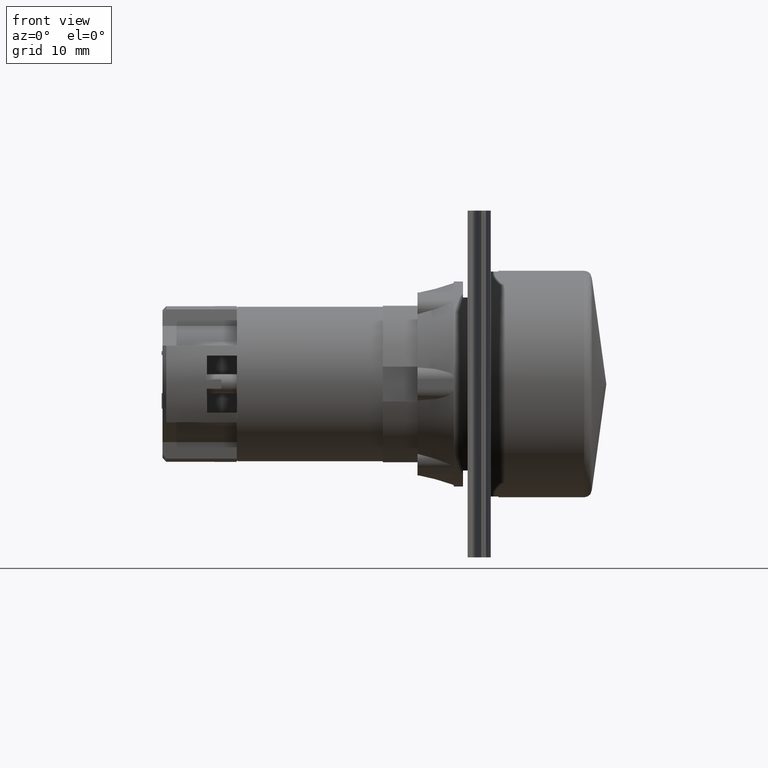
[diagram: clean part render]
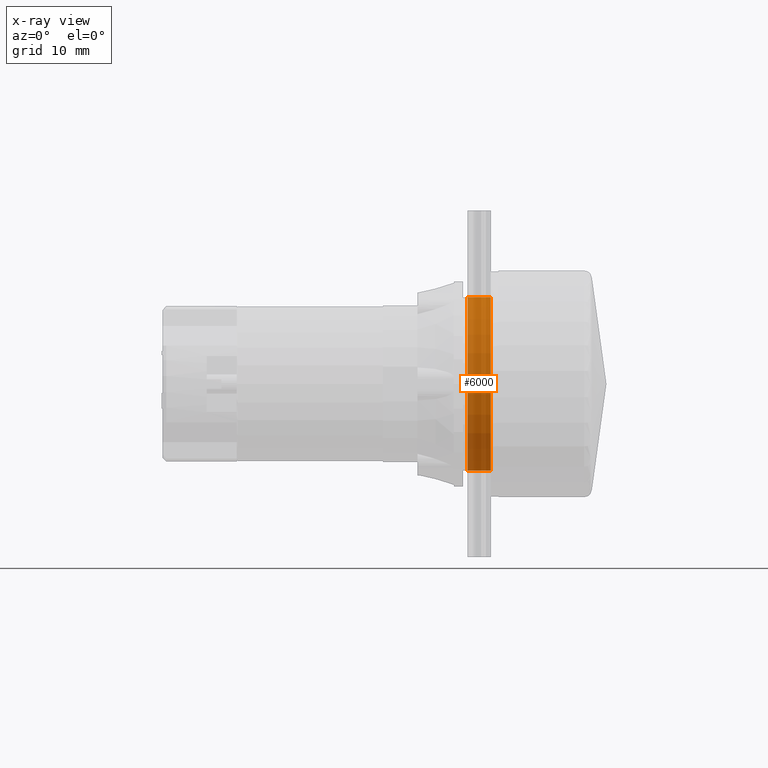
[diagram: x-ray — body ghosted, one internal face saturated and labeled with its STEP entity id]
A machine part, front view, then the same camera in x-ray: the body is ghosted and one INTERNAL B-rep face — a face not visible from any outside direction — is saturated and labeled: STEP entity #6000.
In plain terms, the highlighted cylindrical surface (bore or boss wall) has radius 11.25 mm, axis along (-1, 0, 0).
Its self-contained STEP definition (entity closure, byte-faithful):
#5973=CARTESIAN_POINT('',(-12.704183619849175,-32.725398273954283,22.500000000000000));
#5974=DIRECTION('',(-1.0,0.0,0.0));
#5975=DIRECTION('',(0.0,0.0,1.0));
#5976=AXIS2_PLACEMENT_3D('',#5973,#5974,#5975);
#5977=CYLINDRICAL_SURFACE('',#5976,11.250000000000000);
#5978=CARTESIAN_POINT('',(-15.704183619849179,-32.725398273954283,11.250000000000000));
#5979=VERTEX_POINT('',#5978);
#5980=CARTESIAN_POINT('',(-15.704183619849179,-32.725398273954283,22.500000000000000));
#5981=DIRECTION('',(1.0,0.0,0.0));
#5982=DIRECTION('',(0.0,0.0,1.0));
#5983=AXIS2_PLACEMENT_3D('',#5980,#5981,#5982);
#5984=CIRCLE('',#5983,11.250000000000000);
#5985=EDGE_CURVE('',#5979,#5979,#5984,.T.);
#5986=ORIENTED_EDGE('',*,*,#5985,.F.);
#5987=EDGE_LOOP('',(#5986));
#5988=FACE_OUTER_BOUND('',#5987,.T.);
#5989=CARTESIAN_POINT('',(-12.704183619849175,-32.725398273954283,11.250000000000000));
#5990=VERTEX_POINT('',#5989);
#5991=CARTESIAN_POINT('',(-12.704183619849179,-32.725398273954283,22.500000000000000));
#5992=DIRECTION('',(-1.0,0.0,0.0));
#5993=DIRECTION('',(0.0,0.0,1.0));
#5994=AXIS2_PLACEMENT_3D('',#5991,#5992,#5993);
#5995=CIRCLE('',#5994,11.250000000000000);
#5996=EDGE_CURVE('',#5990,#5990,#5995,.T.);
#5997=ORIENTED_EDGE('',*,*,#5996,.F.);
#5998=EDGE_LOOP('',(#5997));
#5999=FACE_BOUND('',#5998,.T.);
#6000=ADVANCED_FACE('',(#5988,#5999),#5977,.F.);